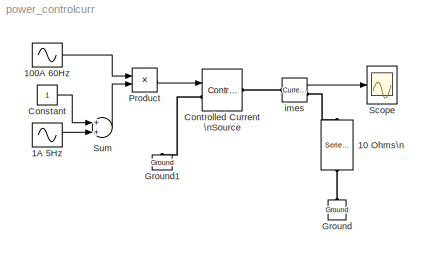
MODEL power_controlcurr
KIND model
BLOCK [Reference] 10 Ohms\n  REF=powerlib/Elements/Series RLC Branch
  AttributesFormatString = \\n
  Capacitance = inf
  Inductance = 0
  LConnTagsString = __new0
  Measurements = None
  PhysicalDomain = powersysdomain
  PortType = p1
  Ports = [0, 0, 0, 0, 0, 1, 1]
  RConnTagsString = __new0
  Resistance = 10
  SourceBlock = powerlib/Elements/Series RLC Branch
  SourceType = Series RLC Branch
  SubClassName = unknown
BLOCK [Sin] 100A 60Hz
  Amplitude = 100
  Frequency = 2*pi*60
  Ports = [0, 1]
  SampleTime = 0
  SineType = Time based
BLOCK [Sin] 1A 5Hz
  Frequency = 2*pi*5
  Ports = [0, 1]
  SampleTime = 0
  SineType = Time based
BLOCK [Constant] Constant
BLOCK [Reference] Controlled Current \nSource  REF=powerlib/Electrical\nSources/Controlled Current Source
  Amplitude = 0
  AttributesFormatString = \\n
  Description = source block
  Frequency = 0
  Initialize = on
  Measurements = None
  Phase = 0
  Ports = [1, 0, 0, 0, 0, 1, 1]
  SourceBlock = powerlib/Electrical\nSources/Controlled Current Source
  SourceType = AC
BLOCK [Reference] Ground  REF=powerlib/Elements/Ground
  AttributesFormatString = \\n
  LConnTagsString = a
  PhysicalDomain = powersysdomain
  PortType = p1
  Ports = [0, 0, 0, 0, 0, 1]
  SourceBlock = powerlib/Elements/Ground
  SourceType = Ground
  SubClassName = unknown
BLOCK [Reference] Ground1  REF=powerlib/Elements/Ground
  AttributesFormatString = \\n
  LConnTagsString = a
  PhysicalDomain = powersysdomain
  PortType = p1
  Ports = [0, 0, 0, 0, 0, 1]
  SourceBlock = powerlib/Elements/Ground
  SourceType = Ground
  SubClassName = unknown
BLOCK [Product] Product
  Ports = [2, 1]
  RndMeth = Floor
BLOCK [Scope] Scope
  DataFormat = Array
  NumInputPorts = 1
  Ports = [1]
  TickLabels = on
  TimeRange = 0.5
  YMax = 200
  YMin = -200
BLOCK [Sum] Sum
  Ports = [2, 1]
BLOCK [Reference] imes  REF=powerlib/Measurements/Current Measurement
  AttributesFormatString = \\n
  OutputType = Magnitude
  PSBequivalent = 0
  PhasorSimulation = off
  Ports = [0, 1, 0, 0, 0, 1, 1]
  SourceBlock = powerlib/Measurements/Current Measurement
  SourceType = Current Measurement
  Tag = PoWeRsYsTeMmEaSuReMeNt
LINE 100A 60Hz:1 -> Product:1
LINE 1A 5Hz:1 -> Sum:2
LINE Constant:1 -> Sum:1
LINE Product:1 -> Controlled Current \nSource:1
LINE Sum:1 -> Product:2
LINE imes:1 -> Scope:1
PLINE 10 Ohms\n:LConn1 -- imes:RConn1
PLINE 10 Ohms\n:RConn1 -- Ground:LConn1
PLINE Controlled Current \nSource:LConn1 -- Ground1:LConn1
PLINE Controlled Current \nSource:RConn1 -- imes:LConn1
